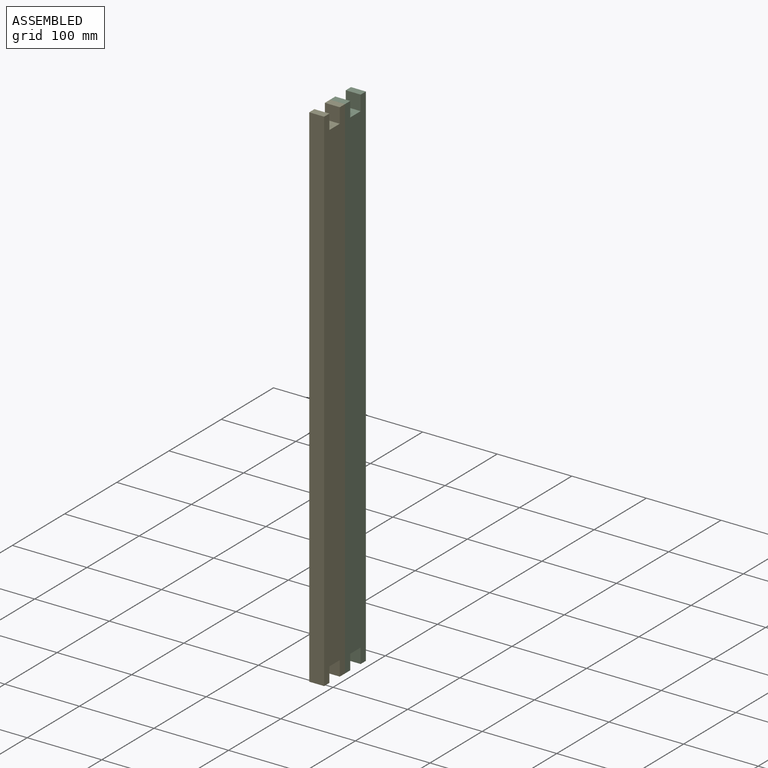
[diagram: assembled view]
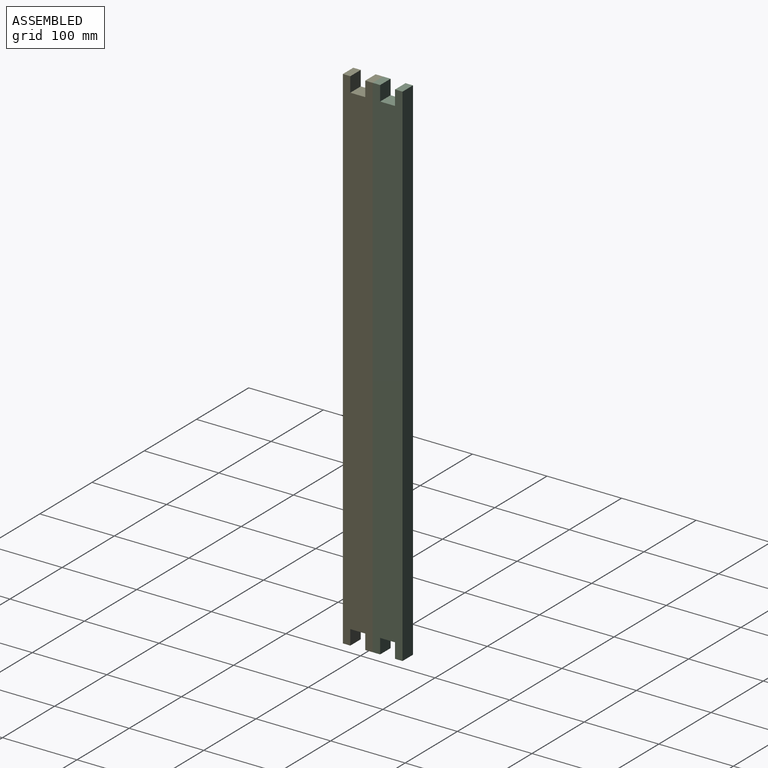
[diagram: assembled view, second angle]
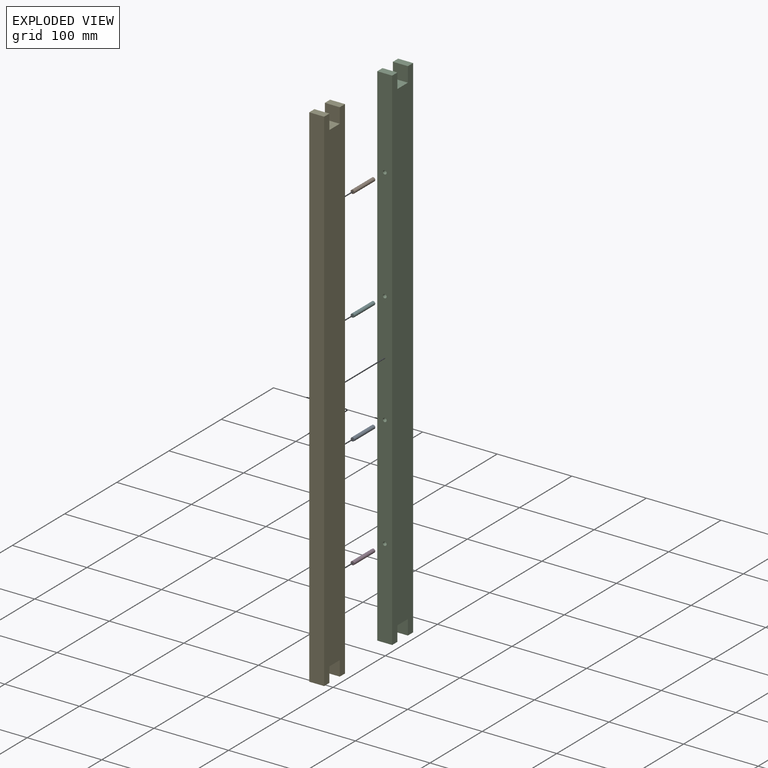
[diagram: exploded view]
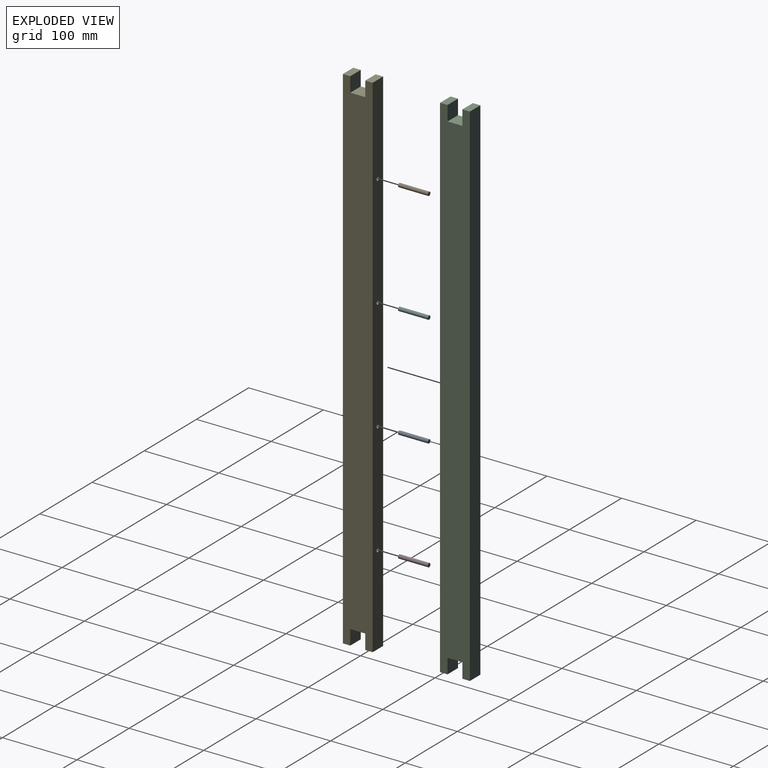
[diagram: exploded view, second angle]
ASSEMBLY  parts=6 mates=7
PART A: 3 faces, bbox 5x5x40 mm
  f0: cylinder r=2.5mm len=40mm, axis (0,0,-1), area 628.3mm2, adj f1,f2
  f1: plane 5x5mm, normal (0,0,1), area 19.6mm2, adj f0
  f2: plane 5x5mm, normal (0,0,-1), area 19.6mm2, adj f0
PART B: same geometry as A
PART C: 22 faces, bbox 20x40x690 mm
  f0: plane 20x10mm, normal (0,0,-1), area 200mm2, adj f1,f3,f4,f19
  f1: plane 690x40mm, normal (1,0,0), area 26800mm2, adj f0,f2,f4,f5,f6,f7,f16,f17
  f2: plane 20x10mm, normal (0,0,1), area 200mm2, adj f1,f3,f4,f16
  f3: plane 690x40mm, normal (-1,0,0), area 26800mm2, adj f0,f2,f4,f5,f6,f7,f16,f17
  f4: plane 690x20mm, normal (0,1,0), area 13721.5mm2, adj f0,f1,f2,f3,f8,f10,f12,f14
  f5: plane 690x20mm, normal (0,-1,0), area 13800mm2, adj f1,f3,f6,f7
  f6: plane 20x10mm, normal (0,0,1), area 200mm2, adj f1,f3,f5,f17
  f7: plane 20x10mm, normal (0,0,-1), area 200mm2, adj f1,f3,f5,f21
  f8: cylinder r=2.5mm len=20mm, axis (0,1,0), area 314.2mm2, adj f4,f9
  f9: cone r=0mm half-angle=59deg, axis (0,1,0), area 22.9mm2, adj f8
  f10: cylinder r=2.5mm len=20mm, axis (0,1,0), area 314.2mm2, adj f4,f11
  f11: cone r=0mm half-angle=59deg, axis (0,1,0), area 22.9mm2, adj f10
  f12: cylinder r=2.5mm len=20mm, axis (0,1,0), area 314.2mm2, adj f4,f13
  f13: cone r=0mm half-angle=59deg, axis (0,1,0), area 22.9mm2, adj f12
  f14: cylinder r=2.5mm len=20mm, axis (0,1,0), area 314.2mm2, adj f4,f15
  f15: cone r=0mm half-angle=59deg, axis (0,1,0), area 22.9mm2, adj f14
  f16: plane 20x20mm, normal (0,-1,0), area 400mm2, adj f1,f2,f3,f18
  f17: plane 20x20mm, normal (0,1,0), area 400mm2, adj f1,f3,f6,f18
  f18: plane 20x20mm, normal (0,0,1), area 400mm2, adj f1,f3,f16,f17
  f19: plane 20x20mm, normal (0,-1,0), area 400mm2, adj f0,f1,f3,f20
  f20: plane 20x20mm, normal (0,0,-1), area 400mm2, adj f1,f3,f19,f21
  f21: plane 20x20mm, normal (0,1,0), area 400mm2, adj f1,f3,f7,f20
PART D: same geometry as A
PART E: same geometry as C
PART F: same geometry as A
PLACE A rot(axis=(1,0,0),90deg) t=(-206.93,-461.41,81.99)mm
PLACE B rot(axis=(1,0,0),90deg) t=(-206.93,-461.41,381.99)mm
PLACE C rot(axis=(1,0,0),180deg) t=(-206.93,-461.41,501.99)mm
PLACE D rot(axis=(1,0,0),90deg) t=(-206.93,-461.41,-68.01)mm
PLACE E t=(-206.93,-501.41,-188.01)mm
PLACE F rot(axis=(1,0,0),90deg) t=(-206.93,-461.41,231.99)mm
MATE revolute D.f0 <-> E.f14  axis (0,1,0) through (-206.93,-481.41,-68.01)mm
MATE fastened E.f12 <-> C.f10  axis (0,1,0) through (-206.93,-481.41,81.99)mm
MATE revolute F.f0 <-> E.f10  axis (0,1,0) through (-206.93,-481.41,231.99)mm
MATE planar C.f4 <-> E.f4  axis (0,-1,0) through (-206.93,-481.41,156.99)mm
MATE planar C.f4 <-> E.f4  axis (0,-1,0) through (-206.93,-481.41,156.99)mm
MATE revolute A.f0 <-> E.f12  axis (0,1,0) through (-206.93,-481.41,81.99)mm
MATE revolute B.f0 <-> E.f8  axis (0,1,0) through (-206.93,-501.41,381.99)mm
